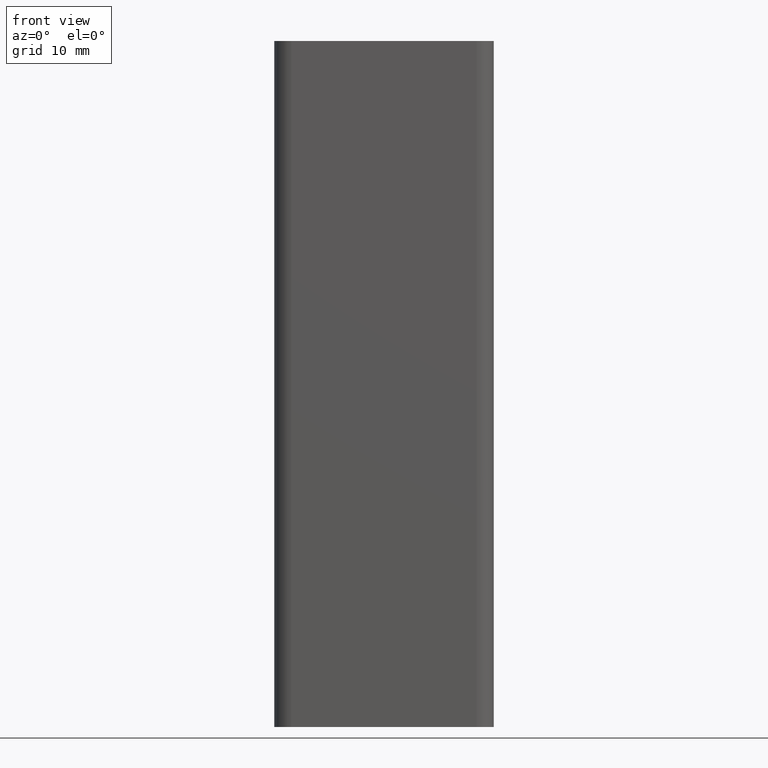
[diagram: clean part render]
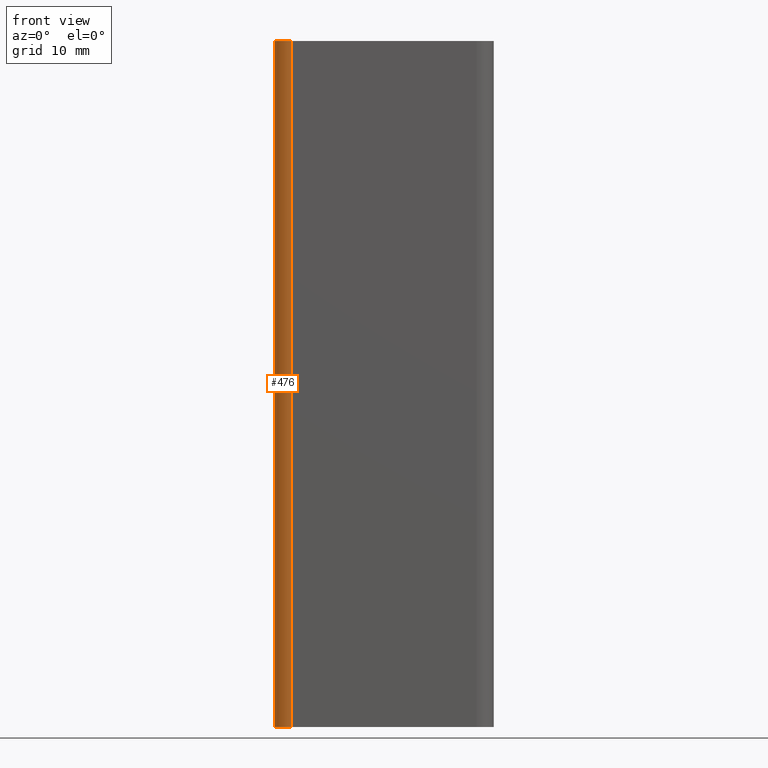
[diagram: same view with one face highlighted and labeled with its STEP entity id]
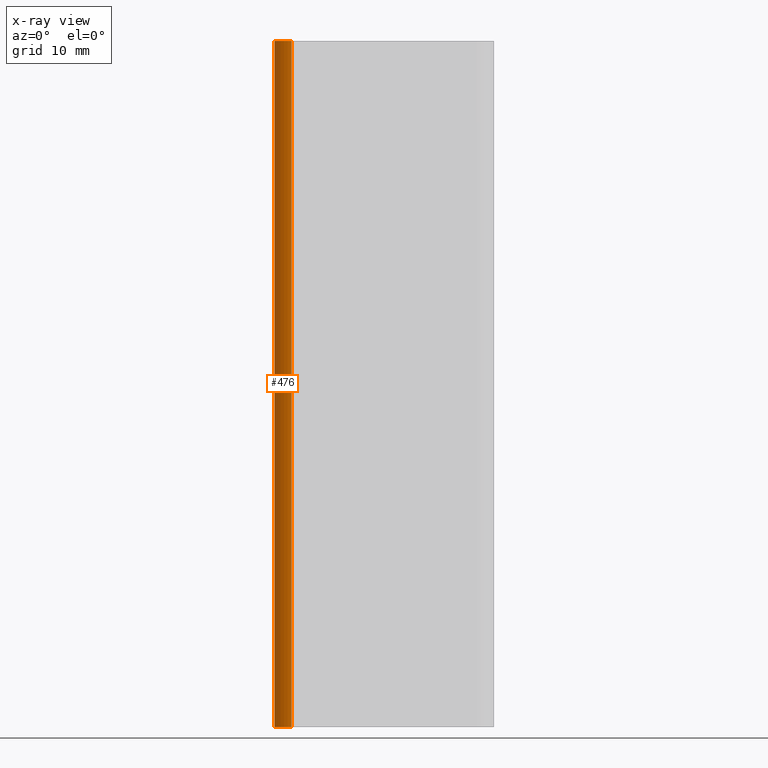
[diagram: x-ray of the same camera — body ghosted, the highlighted face saturated]
A machine part, front view. The second image highlights one B-rep face of the part: STEP entity #476.
The next image is the same camera in x-ray: the body ghosted, the highlighted face saturated — about 0% of this face is hidden behind the body in this view.
In plain terms, the highlighted cylindrical surface (edge-blend (fillet) strip) has radius 2.5 mm, axis along (0, 0, 1).
Its self-contained STEP definition (entity closure, byte-faithful):
#64=LINE('',#787,#110);
#65=LINE('',#790,#111);
#110=VECTOR('',#641,100.);
#111=VECTOR('',#644,100.);
#140=FACE_OUTER_BOUND('',#167,.T.);
#167=EDGE_LOOP('',(#394,#395,#396,#397));
#193=CIRCLE('',#519,2.5);
#195=CIRCLE('',#522,2.5);
#234=VERTEX_POINT('',#776);
#235=VERTEX_POINT('',#778);
#238=VERTEX_POINT('',#786);
#239=VERTEX_POINT('',#788);
#294=EDGE_CURVE('',#235,#234,#193,.T.);
#298=EDGE_CURVE('',#238,#234,#64,.T.);
#299=EDGE_CURVE('',#239,#238,#195,.T.);
#300=EDGE_CURVE('',#239,#235,#65,.T.);
#394=ORIENTED_EDGE('',*,*,#294,.T.);
#395=ORIENTED_EDGE('',*,*,#298,.F.);
#396=ORIENTED_EDGE('',*,*,#299,.F.);
#397=ORIENTED_EDGE('',*,*,#300,.T.);
#456=CYLINDRICAL_SURFACE('',#521,2.5);
#476=ADVANCED_FACE('',(#140),#456,.T.);
#519=AXIS2_PLACEMENT_3D('',#779,#633,#634);
#521=AXIS2_PLACEMENT_3D('',#785,#639,#640);
#522=AXIS2_PLACEMENT_3D('',#789,#642,#643);
#633=DIRECTION('center_axis',(0.,0.,-1.));
#634=DIRECTION('ref_axis',(-1.,0.,0.));
#639=DIRECTION('center_axis',(0.,0.,1.));
#640=DIRECTION('ref_axis',(-1.,0.,0.));
#641=DIRECTION('',(0.,0.,1.));
#642=DIRECTION('center_axis',(0.,0.,-1.));
#643=DIRECTION('ref_axis',(-1.,0.,0.));
#644=DIRECTION('',(0.,0.,1.));
#776=CARTESIAN_POINT('',(-9.5,-6.75,100.));
#778=CARTESIAN_POINT('',(-7.,-9.25,100.));
#779=CARTESIAN_POINT('Origin',(-7.,-6.75,100.));
#785=CARTESIAN_POINT('Origin',(-7.,-6.75,0.));
#786=CARTESIAN_POINT('',(-9.5,-6.75,0.));
#787=CARTESIAN_POINT('',(-9.5,-6.75,0.));
#788=CARTESIAN_POINT('',(-7.,-9.25,0.));
#789=CARTESIAN_POINT('Origin',(-7.,-6.75,0.));
#790=CARTESIAN_POINT('',(-7.,-9.25,0.));